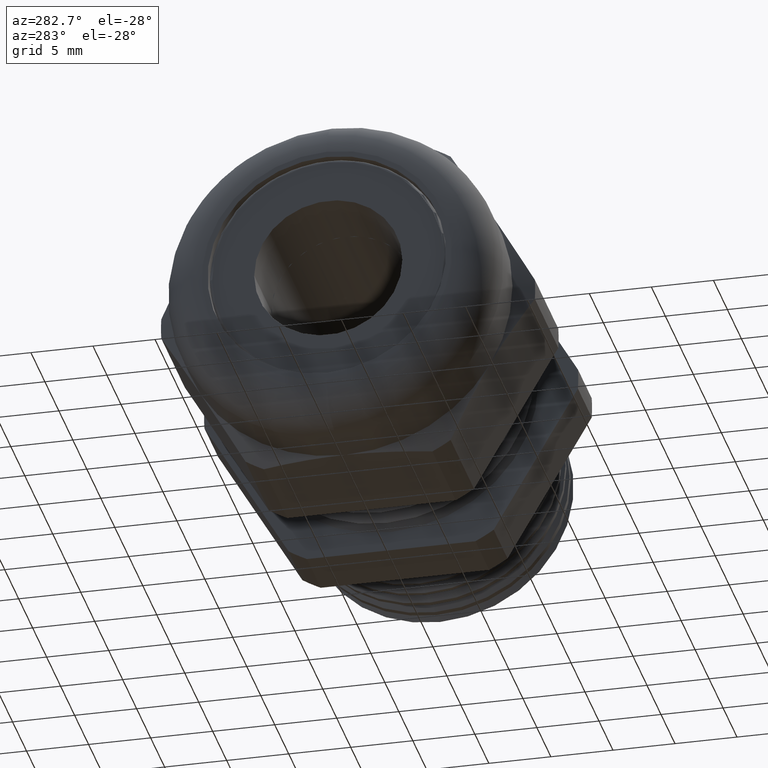
[diagram: clean part render]
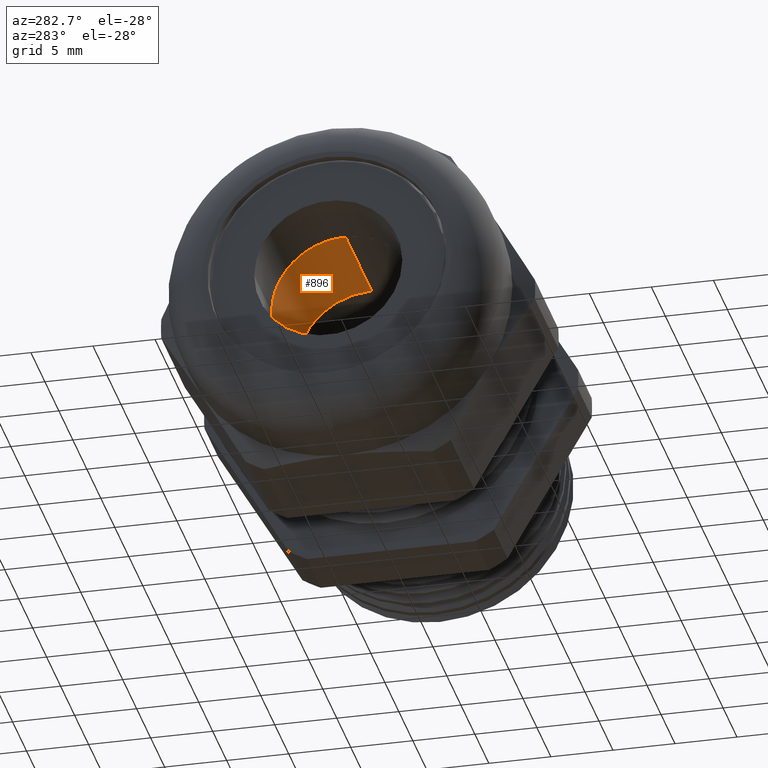
[diagram: same view with one face highlighted and labeled with its STEP entity id]
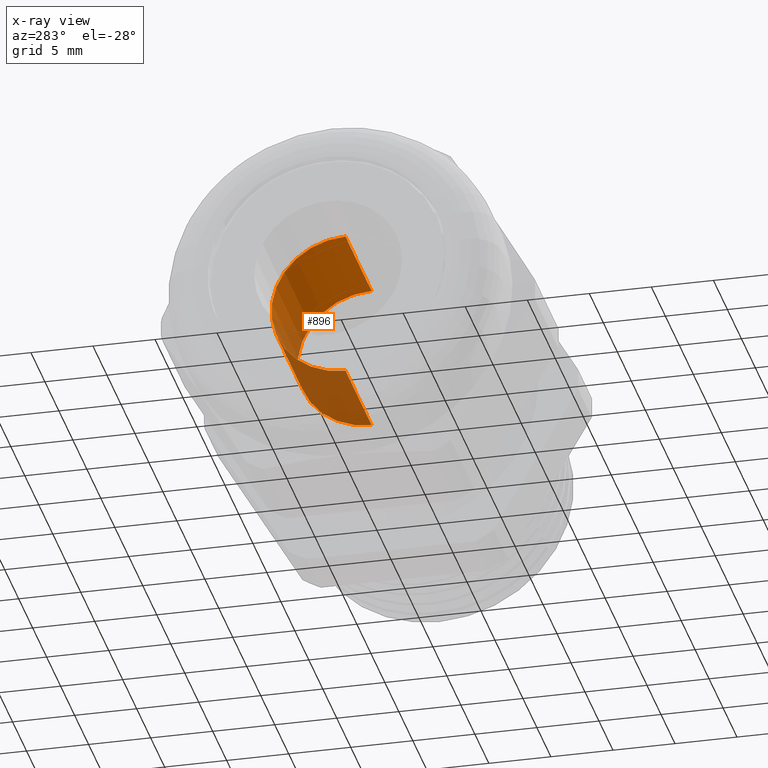
[diagram: x-ray of the same camera — body ghosted, the highlighted face saturated]
A machine part, auxiliary view. The second image highlights one B-rep face of the part: STEP entity #896.
The next image is the same camera in x-ray: the body ghosted, the highlighted face saturated — about 38% of this face is hidden behind the body in this view.
In plain terms, the highlighted cylindrical surface (partial cylindrical patch) has radius 5.969 mm, axis along (-1, 0, 0).
Its self-contained STEP definition (entity closure, byte-faithful):
#167 = VERTEX_POINT ( 'NONE', #1471 ) ;
#168 = VERTEX_POINT ( 'NONE', #1470 ) ;
#740 = VERTEX_POINT ( 'NONE', #2675 ) ;
#742 = EDGE_CURVE ( 'NONE', #167, #745, #2674, .T. ) ;
#745 = VERTEX_POINT ( 'NONE', #2669 ) ;
#746 = EDGE_CURVE ( 'NONE', #168, #740, #2668, .T. ) ;
#896 = ADVANCED_FACE ( 'NONE', ( #2917 ), #2916, .F. ) ;
#897 = EDGE_LOOP ( 'NONE', ( #898, #899, #901, #902 ) ) ;
#898 = ORIENTED_EDGE ( 'NONE', *, *, #746, .F. ) ;
#899 = ORIENTED_EDGE ( 'NONE', *, *, #900, .F. ) ;
#900 = EDGE_CURVE ( 'NONE', #167, #168, #2911, .T. ) ;
#901 = ORIENTED_EDGE ( 'NONE', *, *, #742, .T. ) ;
#902 = ORIENTED_EDGE ( 'NONE', *, *, #916, .T. ) ;
#916 = EDGE_CURVE ( 'NONE', #745, #740, #2950, .T. ) ;
#1470 = CARTESIAN_POINT ( 'NONE',  ( -0.4708333333333334900, 2.877919977996279800E-017, -0.2349999999999999900 ) ) ;
#1471 = CARTESIAN_POINT ( 'NONE',  ( -0.4708333333333334900, 0.0000000000000000000, 0.2349999999999999900 ) ) ;
#2665 = DIRECTION ( 'NONE',  ( -1.000000000000000000, 0.0000000000000000000, 0.0000000000000000000 ) ) ;
#2666 = VECTOR ( 'NONE', #2665, 39.37007874015748100 ) ;
#2667 = CARTESIAN_POINT ( 'NONE',  ( -0.7238591030180623300, 2.877919977996279800E-017, -0.2349999999999999900 ) ) ;
#2668 = LINE ( 'NONE', #2667, #2666 ) ;
#2669 = CARTESIAN_POINT ( 'NONE',  ( -0.8375000000000001300, 0.0000000000000000000, 0.2349999999999999900 ) ) ;
#2671 = DIRECTION ( 'NONE',  ( -1.000000000000000000, 0.0000000000000000000, 0.0000000000000000000 ) ) ;
#2672 = VECTOR ( 'NONE', #2671, 39.37007874015748100 ) ;
#2673 = CARTESIAN_POINT ( 'NONE',  ( -0.7238591030180623300, 0.0000000000000000000, 0.2349999999999999900 ) ) ;
#2674 = LINE ( 'NONE', #2673, #2672 ) ;
#2675 = CARTESIAN_POINT ( 'NONE',  ( -0.8375000000000001300, 2.877919977996279800E-017, -0.2349999999999999900 ) ) ;
#2908 = DIRECTION ( 'NONE',  ( 0.0000000000000000000, 0.0000000000000000000, 1.000000000000000000 ) ) ;
#2909 = DIRECTION ( 'NONE',  ( -1.000000000000000000, 0.0000000000000000000, 0.0000000000000000000 ) ) ;
#2910 = AXIS2_PLACEMENT_3D ( 'NONE', #2915, #2909, #2908 ) ;
#2911 = CIRCLE ( 'NONE', #2910, 0.2349999999999999900 ) ;
#2912 = DIRECTION ( 'NONE',  ( 0.0000000000000000000, 0.0000000000000000000, 1.000000000000000000 ) ) ;
#2913 = DIRECTION ( 'NONE',  ( -1.000000000000000000, 0.0000000000000000000, 0.0000000000000000000 ) ) ;
#2914 = AXIS2_PLACEMENT_3D ( 'NONE', #2922, #2913, #2912 ) ;
#2915 = CARTESIAN_POINT ( 'NONE',  ( -0.4708333333333334900, 0.0000000000000000000, 0.0000000000000000000 ) ) ;
#2916 = CYLINDRICAL_SURFACE ( 'NONE', #2914, 0.2349999999999999900 ) ;
#2917 = FACE_OUTER_BOUND ( 'NONE', #897, .T. ) ;
#2922 = CARTESIAN_POINT ( 'NONE',  ( -0.7238591030180623300, 0.0000000000000000000, 0.0000000000000000000 ) ) ;
#2946 = DIRECTION ( 'NONE',  ( 0.0000000000000000000, 0.0000000000000000000, 1.000000000000000000 ) ) ;
#2947 = DIRECTION ( 'NONE',  ( -1.000000000000000000, 0.0000000000000000000, 0.0000000000000000000 ) ) ;
#2948 = CARTESIAN_POINT ( 'NONE',  ( -0.8375000000000001300, 0.0000000000000000000, 0.0000000000000000000 ) ) ;
#2949 = AXIS2_PLACEMENT_3D ( 'NONE', #2948, #2947, #2946 ) ;
#2950 = CIRCLE ( 'NONE', #2949, 0.2349999999999999900 ) ;